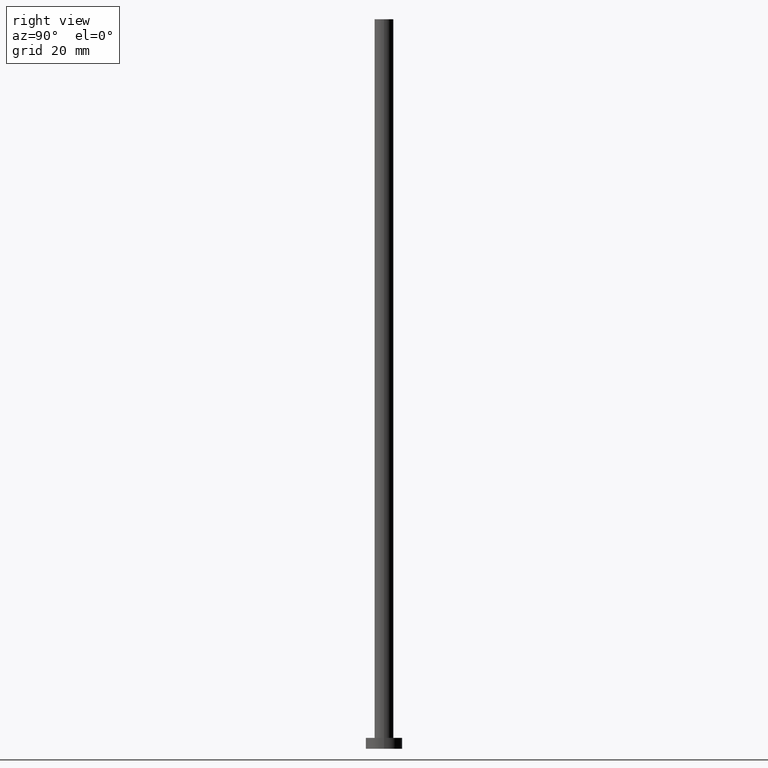
[diagram: clean part render]
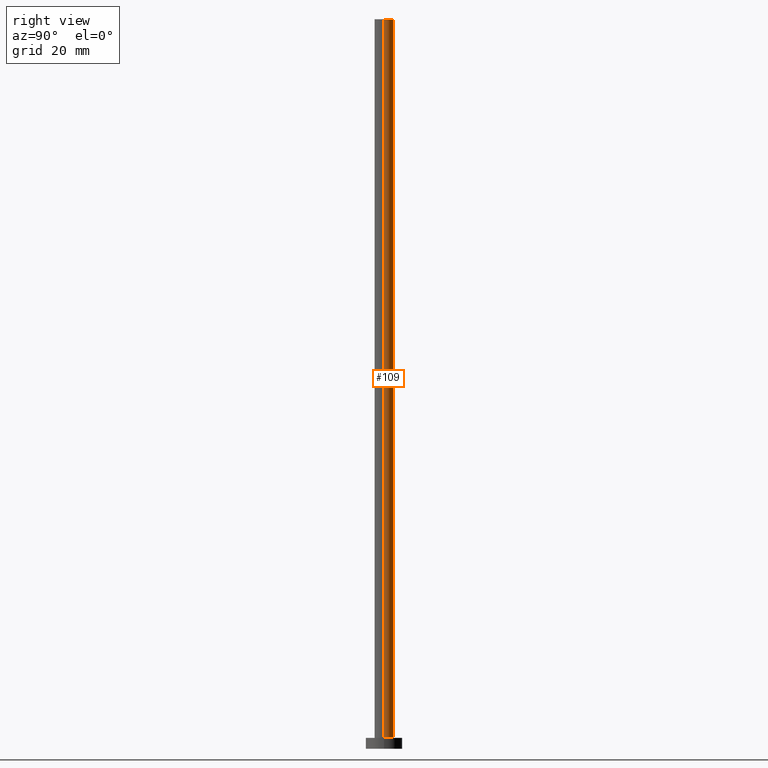
[diagram: same view with one face highlighted and labeled with its STEP entity id]
A machine part, right view. The second image highlights one B-rep face of the part: STEP entity #109.
In plain terms, the highlighted cylindrical surface (edge-blend (fillet) strip) has radius 2.6 mm, axis along (-0, -0, -1).
Its self-contained STEP definition (entity closure, byte-faithful):
#15 = CARTESIAN_POINT ( 'NONE',  ( 2.600000000000000089, 3.184081677783118191E-16, 200.0000000000000000 ) ) ;
#16 = DIRECTION ( 'NONE',  ( -0.000000000000000000, -0.000000000000000000, -1.000000000000000000 ) ) ;
#17 = VERTEX_POINT ( 'NONE', #198 ) ;
#18 = ORIENTED_EDGE ( 'NONE', *, *, #177, .T. ) ;
#22 = VERTEX_POINT ( 'NONE', #37 ) ;
#23 = VERTEX_POINT ( 'NONE', #218 ) ;
#27 = DIRECTION ( 'NONE',  ( 0.000000000000000000, 0.000000000000000000, 1.000000000000000000 ) ) ;
#37 = CARTESIAN_POINT ( 'NONE',  ( 2.600000000000000089, 3.184081677783118191E-16, 200.0000000000000000 ) ) ;
#39 = ORIENTED_EDGE ( 'NONE', *, *, #78, .F. ) ;
#43 = ORIENTED_EDGE ( 'NONE', *, *, #228, .T. ) ;
#63 = EDGE_CURVE ( 'NONE', #17, #81, #214, .T. ) ;
#67 = AXIS2_PLACEMENT_3D ( 'NONE', #89, #111, #232 ) ;
#74 = FACE_OUTER_BOUND ( 'NONE', #251, .T. ) ;
#78 = EDGE_CURVE ( 'NONE', #22, #17, #185, .T. ) ;
#81 = VERTEX_POINT ( 'NONE', #230 ) ;
#89 = CARTESIAN_POINT ( 'NONE',  ( 0.000000000000000000, 0.000000000000000000, 3.000000000000000000 ) ) ;
#91 = AXIS2_PLACEMENT_3D ( 'NONE', #114, #16, #215 ) ;
#109 = ADVANCED_FACE ( 'NONE', ( #74 ), #162, .T. ) ;
#111 = DIRECTION ( 'NONE',  ( 0.000000000000000000, 0.000000000000000000, 1.000000000000000000 ) ) ;
#114 = CARTESIAN_POINT ( 'NONE',  ( 0.000000000000000000, 0.000000000000000000, 200.0000000000000000 ) ) ;
#133 = DIRECTION ( 'NONE',  ( 1.000000000000000000, 0.000000000000000000, 0.000000000000000000 ) ) ;
#145 = AXIS2_PLACEMENT_3D ( 'NONE', #209, #27, #133 ) ;
#158 = VECTOR ( 'NONE', #235, 1000.000000000000000 ) ;
#160 = DIRECTION ( 'NONE',  ( -0.000000000000000000, -0.000000000000000000, -1.000000000000000000 ) ) ;
#162 = CYLINDRICAL_SURFACE ( 'NONE', #91, 2.600000000000000089 ) ;
#170 = CIRCLE ( 'NONE', #67, 2.600000000000000089 ) ;
#177 = EDGE_CURVE ( 'NONE', #23, #81, #170, .T. ) ;
#185 = CIRCLE ( 'NONE', #145, 2.600000000000000089 ) ;
#193 = LINE ( 'NONE', #15, #249 ) ;
#194 = CARTESIAN_POINT ( 'NONE',  ( -2.600000000000000089, 0.000000000000000000, 200.0000000000000000 ) ) ;
#196 = ORIENTED_EDGE ( 'NONE', *, *, #63, .F. ) ;
#198 = CARTESIAN_POINT ( 'NONE',  ( -2.600000000000000089, 0.000000000000000000, 200.0000000000000000 ) ) ;
#209 = CARTESIAN_POINT ( 'NONE',  ( 0.000000000000000000, 0.000000000000000000, 200.0000000000000000 ) ) ;
#214 = LINE ( 'NONE', #194, #158 ) ;
#215 = DIRECTION ( 'NONE',  ( -1.000000000000000000, 0.000000000000000000, 0.000000000000000000 ) ) ;
#218 = CARTESIAN_POINT ( 'NONE',  ( 2.600000000000000089, 3.184081677783118191E-16, 3.000000000000000000 ) ) ;
#228 = EDGE_CURVE ( 'NONE', #22, #23, #193, .T. ) ;
#230 = CARTESIAN_POINT ( 'NONE',  ( -2.600000000000000089, 0.000000000000000000, 3.000000000000000000 ) ) ;
#232 = DIRECTION ( 'NONE',  ( 1.000000000000000000, 0.000000000000000000, 0.000000000000000000 ) ) ;
#235 = DIRECTION ( 'NONE',  ( -0.000000000000000000, -0.000000000000000000, -1.000000000000000000 ) ) ;
#249 = VECTOR ( 'NONE', #160, 1000.000000000000000 ) ;
#251 = EDGE_LOOP ( 'NONE', ( #39, #43, #18, #196 ) ) ;